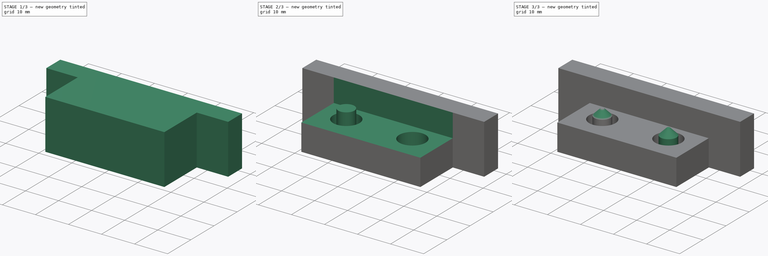
[diagram: build sequence overview — one tinted view per stage of 3, left to right]
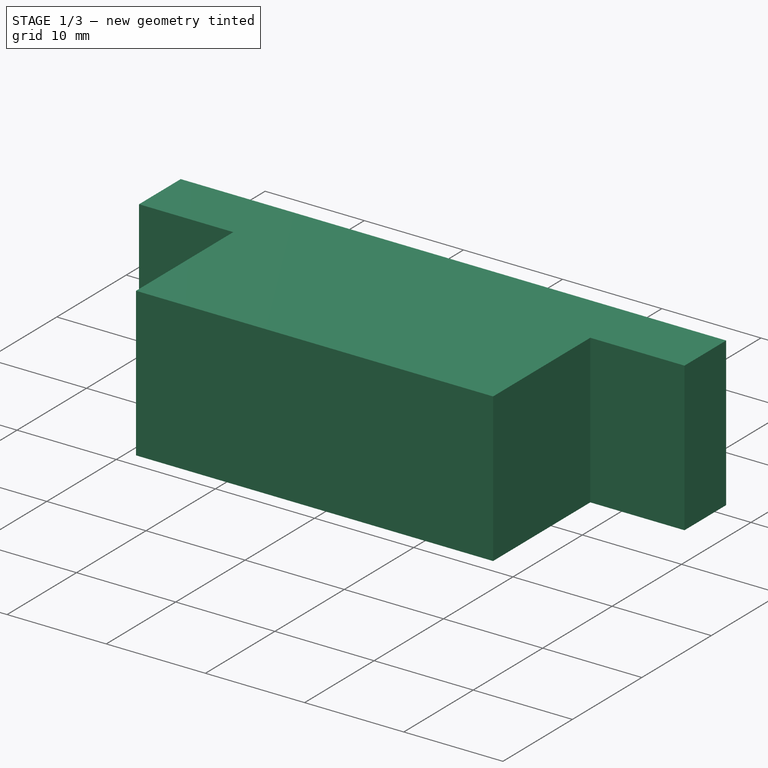
[diagram: stage 1 of 3 — iso view after this stage's code; geometry added in this stage tinted green]
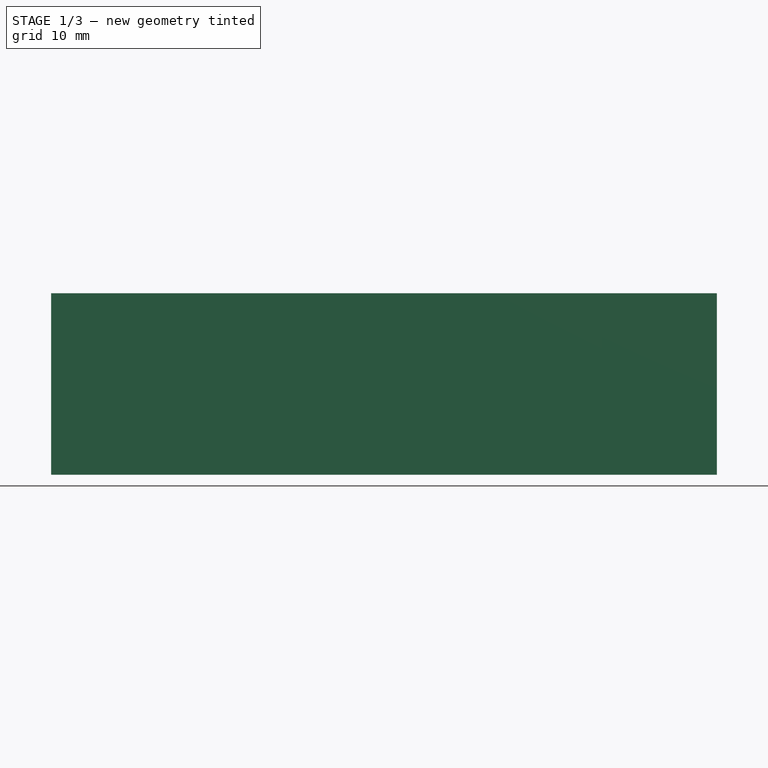
[diagram: stage 1 of 3 — front view after this stage's code; geometry added in this stage tinted green]
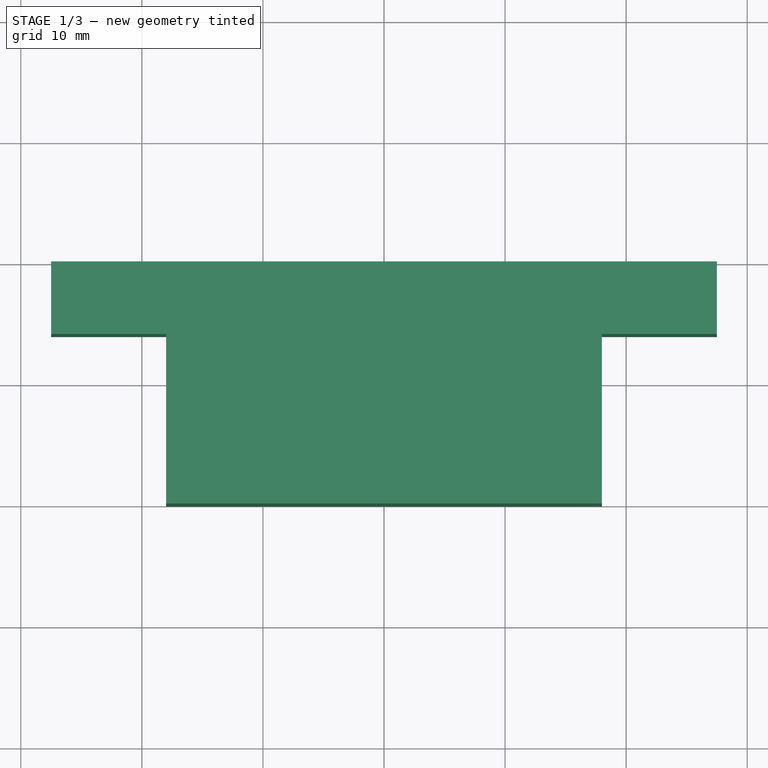
[diagram: stage 1 of 3 — top view after this stage's code; geometry added in this stage tinted green]
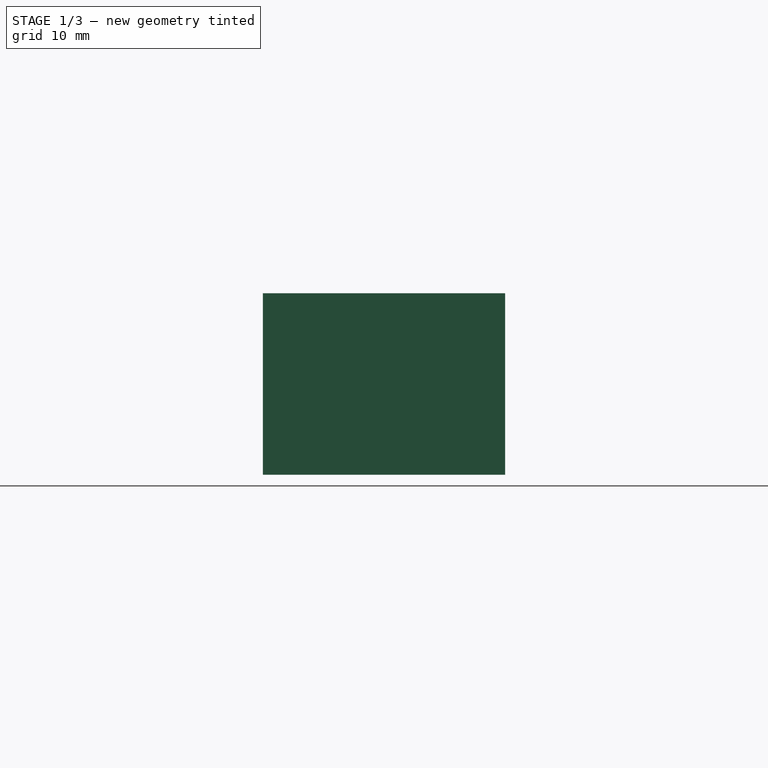
[diagram: stage 1 of 3 — right view after this stage's code; geometry added in this stage tinted green]
FCSTD DOCUMENT  (FreeCAD 0.21R33668 +7 (Git))
Label: socket-set-bottom-stopper
License: All rights reserved
LicenseURL: http://en.wikipedia.org/wiki/All_rights_reserved
objects: Sketcher::SketchObject×5, PartDesign::Pocket×3, PartDesign::Pad×1, PartDesign::Plane×1, PartDesign::Revolution×1, PartDesign::Chamfer×1, PartDesign::Mirrored×1, PartDesign::Body×1
note: 20 computed .brp shape members not serialized (recipe doc carries the construction recipe); baked Part::Feature solids carry a one-line shape summary decoded from their .brp

FEATURE [Sketcher::SketchObject] Sketch
  FullyConstrained = true
  MapMode = 5
  Support = -> [XY_Plane]
  sketch-geometry (4):
    g0: LineSegment StartX=-27.5 StartY=10 StartZ=0 EndX=27.5 EndY=10 EndZ=0
    g1: LineSegment StartX=27.5 StartY=10 StartZ=0 EndX=27.5 EndY=-10 EndZ=0
    g2: LineSegment StartX=27.5 StartY=-10 StartZ=0 EndX=-27.5 EndY=-10 EndZ=0
    g3: LineSegment StartX=-27.5 StartY=-10 StartZ=0 EndX=-27.5 EndY=10 EndZ=0
  constraints (10):
    c: Coincident(g0,g1)
    c: Coincident(g1,g2)
    c: Coincident(g2,g3)
    c: Coincident(g3,g0)
    c: Horizontal(g2)
    c: Vertical(g1)
    c: Symmetric(g0,g0,g-2)
    c: Symmetric(g2,g0,g-1)
    c: Distance(g3) = 20
    c: Distance(g2) = 55
FEATURE [PartDesign::Pad] Pad
  Direction = (0,0,1)
  Length = 15
  Length2 = 10
  Profile = -> Sketch
  ReferenceAxis = -> Sketch [N_Axis]
  Type = 0
FEATURE [Sketcher::SketchObject] Sketch001
  ExternalGeometry = -> [Pad]
  FullyConstrained = true
  MapMode = 5
  Placement = pos=(0,0,15) rot=(0,0,1;0rad)
  Support = -> [Pad]
  sketch-geometry (14):
    g0: LineSegment StartX=-27.5 StartY=4 StartZ=0 EndX=27.5 EndY=4 EndZ=0
    g1: LineSegment StartX=27.5 StartY=4 StartZ=0 EndX=27.5 EndY=-10 EndZ=0
    g2: LineSegment StartX=-27.5 StartY=4 StartZ=0 EndX=-27.5 EndY=-10 EndZ=0
    g3: LineSegment StartX=-27.5 StartY=-10 StartZ=0 EndX=27.5 EndY=-10 EndZ=0
    g4: Circle CenterX=-10 CenterY=-2 CenterZ=0 NormalX=0 NormalY=0 NormalZ=1 AngleXU=0 Radius=4.125
    g5: Circle CenterX=10 CenterY=-2 CenterZ=0 NormalX=0 NormalY=0 NormalZ=1 AngleXU=0 Radius=4.125
    g6: LineSegment StartX=-10 StartY=-2 StartZ=0 EndX=-10 EndY=4 EndZ=0
    g7: LineSegment StartX=-18 StartY=4 StartZ=0 EndX=-18 EndY=-10 EndZ=0
    g8: LineSegment StartX=18 StartY=4 StartZ=0 EndX=18 EndY=-10 EndZ=0
    g9: LineSegment StartX=-18 StartY=4 StartZ=0 EndX=18 EndY=4 EndZ=0
    g10: LineSegment StartX=-18 StartY=4 StartZ=0 EndX=-27.5 EndY=4 EndZ=0
    g11: LineSegment StartX=-18 StartY=-10 StartZ=0 EndX=-27.5 EndY=-10 EndZ=0
    g12: LineSegment StartX=18 StartY=4 StartZ=0 EndX=27.5 EndY=4 EndZ=0
    g13: LineSegment StartX=18 StartY=-10 StartZ=0 EndX=27.5 EndY=-10 EndZ=0
  constraints (35):
    c: PointOnObject(g0,g-3)
    c: PointOnObject(g0,g-4)
    c: Horizontal(g0)
    c: Coincident(g1,g0)
    c: Coincident(g1,g-6)
    c: Coincident(g2,g0)
    c: Coincident(g2,g-6)
    c: Coincident(g3,g2)
    c: Coincident(g3,g1)
    c: Distance(g2) = 14
    c: Symmetric(g5,g4,g-2)
    c: Equal(g4,g5)
    c: Diameter(g4) = 8.25
    c: Coincident(g6,g4)
    c: PointOnObject(g6,g0)
    c: Vertical(g6)
    c: Distance(g6) = 6
    c: DistanceX(g4,g5) = 20
    c: PointOnObject(g7,g0)
    c: PointOnObject(g7,g3)
    c: Vertical(g7)
    c: PointOnObject(g8,g3)
    c: Vertical(g8)
    c: Coincident(g9,g7)
    c: Coincident(g9,g8)
    c: Distance(g9) = 36
    c: Coincident(g10,g7)
    c: Coincident(g10,g2)
    c: Coincident(g11,g7)
    c: Coincident(g11,g2)
    c: Symmetric(g7,g8,g-2)
    c: Coincident(g12,g8)
    c: Coincident(g12,g1)
    c: Coincident(g13,g8)
    c: Coincident(g13,g1)
FEATURE [PartDesign::Pocket] Pocket
  BaseFeature = -> Pad
  Direction = (0,0,-1)
  Length = 5
  Length2 = 5
  Profile = -> Sketch001
  ReferenceAxis = -> Sketch001 [N_Axis]
  Type = 1
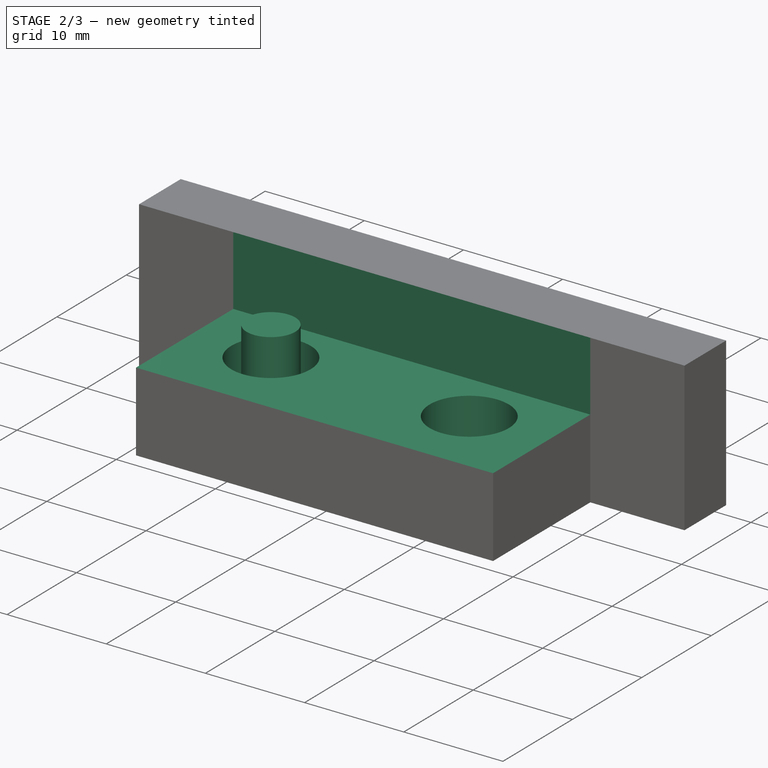
[diagram: stage 2 of 3 — iso view after this stage's code; geometry added in this stage tinted green]
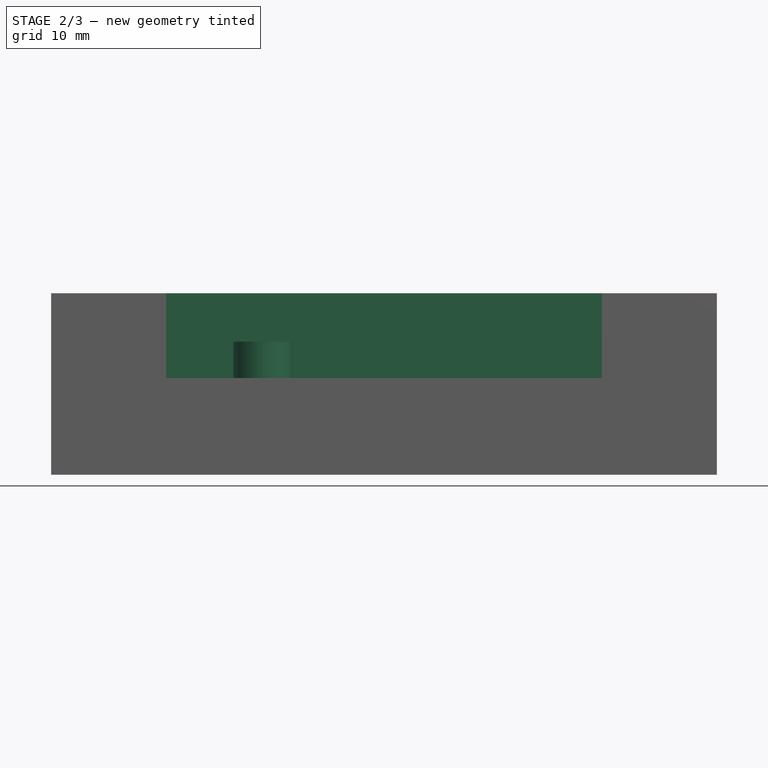
[diagram: stage 2 of 3 — front view after this stage's code; geometry added in this stage tinted green]
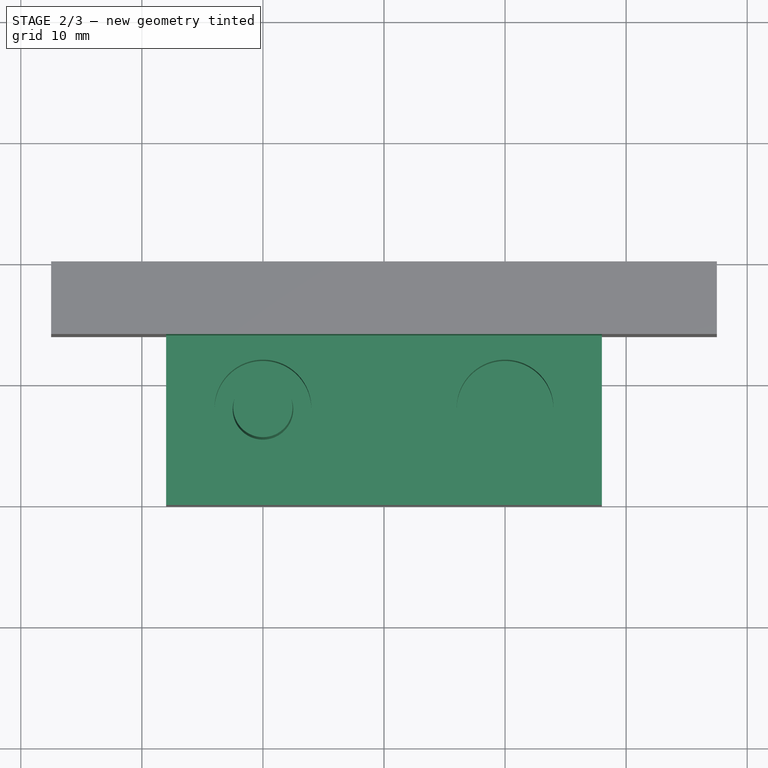
[diagram: stage 2 of 3 — top view after this stage's code; geometry added in this stage tinted green]
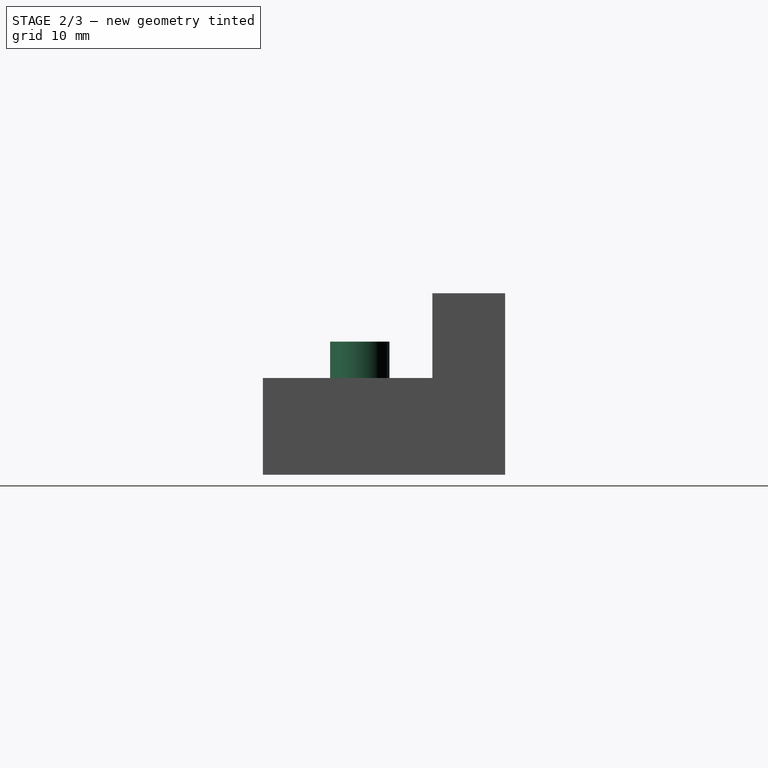
[diagram: stage 2 of 3 — right view after this stage's code; geometry added in this stage tinted green]
FEATURE [Sketcher::SketchObject] Sketch002
  ExternalGeometry = -> [Pocket]
  FullyConstrained = true
  MapMode = 5
  Placement = pos=(0,0,15) rot=(0,0,1;0rad)
  Support = -> [Pocket]
  sketch-geometry (2):
    g0: Circle CenterX=-10 CenterY=-2 CenterZ=0 NormalX=0 NormalY=0 NormalZ=1 AngleXU=0 Radius=4
    g1: Circle CenterX=10 CenterY=-2 CenterZ=0 NormalX=0 NormalY=0 NormalZ=1 AngleXU=0 Radius=4
  constraints (5):
    c: Equal(g1,g0)
    c: Symmetric(g0,g1,g-2)
    c: DistanceY(g0,g-3) = 6
    c: Diameter(g0) = 8
    c: Distance(g0,g1) = 20
FEATURE [PartDesign::Pocket] Pocket001
  BaseFeature = -> Pocket
  Direction = (0,0,-1)
  Length = 13
  Length2 = 5
  Profile = -> Sketch002
  ReferenceAxis = -> Sketch002 [N_Axis]
  Type = 0
  expr: Length = Pad.Length - 2 mm
FEATURE [PartDesign::Plane] DatumPlane
  Length = 65.4881
  MapMode = 7
  Placement = pos=(-6,-2,15) rot=(1,0,0;1.5708rad)
  ResizeMode = 0
  Support = -> [Pocket001]
  Width = 60.4881
FEATURE [Sketcher::SketchObject] Sketch004
  ExternalGeometry = -> [Pocket001]
  FullyConstrained = true
  MapMode = 5
  Placement = pos=(0,0,15) rot=(0,0,1;0rad)
  Support = -> [Pocket001]
  sketch-geometry (4):
    g0: LineSegment StartX=-18 StartY=4 StartZ=0 EndX=18 EndY=4 EndZ=0
    g1: LineSegment StartX=18 StartY=4 StartZ=0 EndX=18 EndY=-10 EndZ=0
    g2: LineSegment StartX=18 StartY=-10 StartZ=0 EndX=-18 EndY=-10 EndZ=0
    g3: LineSegment StartX=-18 StartY=-10 StartZ=0 EndX=-18 EndY=4 EndZ=0
  constraints (10):
    c: Coincident(g0,g1)
    c: Coincident(g1,g2)
    c: Coincident(g2,g3)
    c: Coincident(g3,g0)
    c: Horizontal(g0)
    c: Horizontal(g2)
    c: Vertical(g1)
    c: Vertical(g3)
    c: Coincident(g0,g-3)
    c: Coincident(g1,g-4)
FEATURE [PartDesign::Pocket] Pocket002
  BaseFeature = -> Pocket001
  Direction = (0,0,-1)
  Length = 7
  Length2 = 5
  Profile = -> Sketch004
  ReferenceAxis = -> Sketch004 [N_Axis]
  Type = 0
FEATURE [Sketcher::SketchObject] Sketch005
  ExternalGeometry = -> [Pocket002]
  FullyConstrained = true
  MapMode = 5
  Placement = pos=(-6,-2,15) rot=(1,0,0;1.5708rad)
  Support = -> [DatumPlane]
  sketch-geometry (5):
    g0: LineSegment StartX=-4 StartY=-4 StartZ=0 EndX=-1.55 EndY=-4 EndZ=0
    g1: LineSegment StartX=-1.55 StartY=-4 StartZ=0 EndX=-1.55 EndY=-8 EndZ=0
    g2: LineSegment StartX=-1.55 StartY=-8 StartZ=0 EndX=-1.5 EndY=-13 EndZ=0
    g3: LineSegment StartX=-1.5 StartY=-13 StartZ=0 EndX=-4 EndY=-13 EndZ=0
    g4: LineSegment StartX=-4 StartY=-4 StartZ=0 EndX=-4 EndY=-13 EndZ=0
  constraints (14):
    c: Coincident(g1,g0)
    c: Vertical(g1)
    c: Coincident(g2,g1)
    c: Coincident(g3,g2)
    c: Distance(g3) = 2.5
    c: Coincident(g4,g0)
    c: Coincident(g4,g3)
    c: Vertical(g4)
    c: Distance(g4) = 9
    c: Horizontal(g0)
    c: Distance(g0) = 2.45
    c: Symmetric(g-4,g-4,g3)
    c: DistanceY(g2,g1) = 5
    c: PointOnObject(g2,g-4)
FEATURE [PartDesign::Revolution] Revolution
  Angle = 360
  Axis = (0,-2e-16,-1)
  Base = (-10,-2,11)
  BaseFeature = -> Pocket002
  Profile = -> Sketch005
  ReferenceAxis = -> Sketch005 [Edge5]
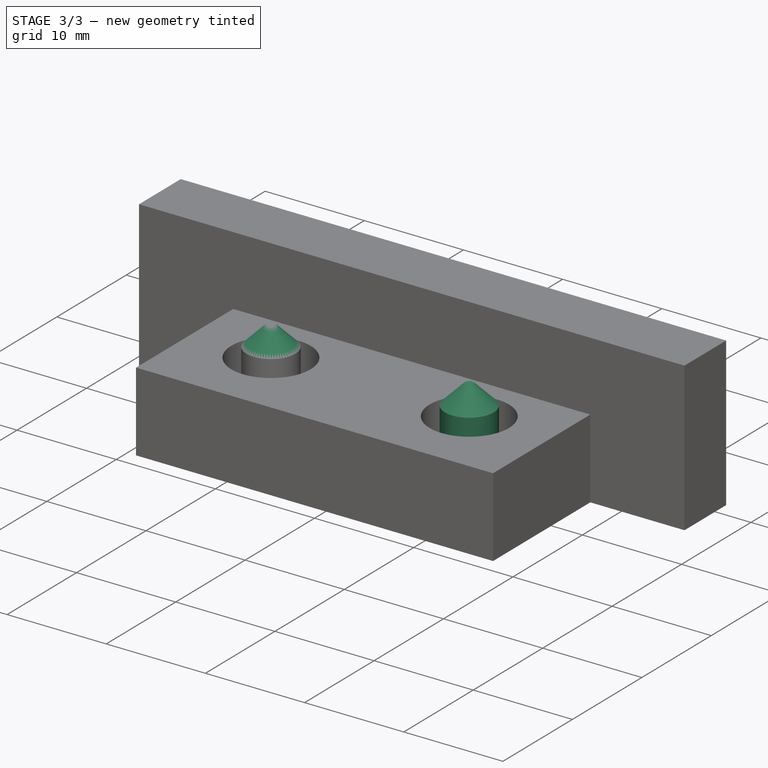
[diagram: stage 3 of 3 — iso view after this stage's code; geometry added in this stage tinted green]
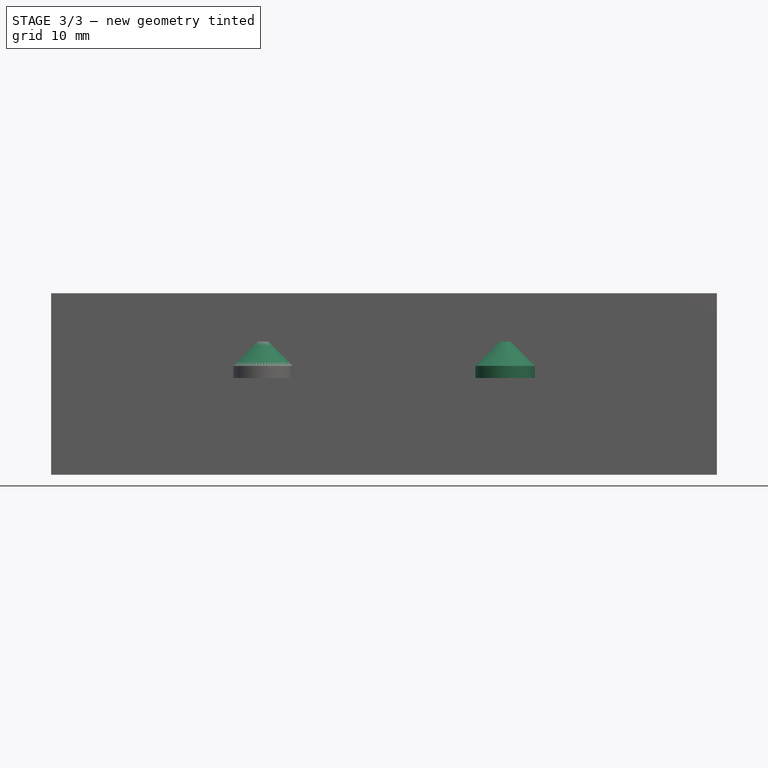
[diagram: stage 3 of 3 — front view after this stage's code; geometry added in this stage tinted green]
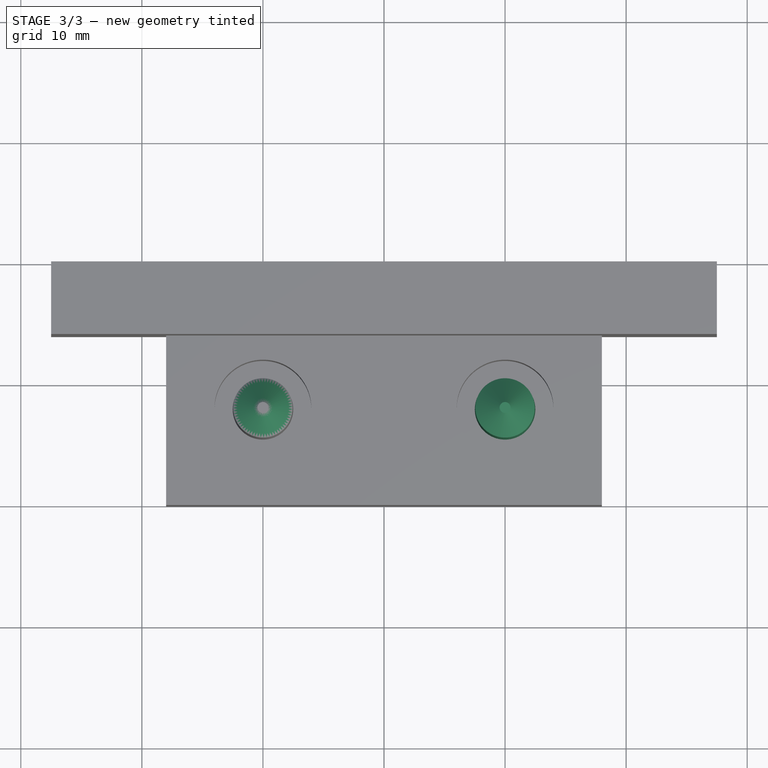
[diagram: stage 3 of 3 — top view after this stage's code; geometry added in this stage tinted green]
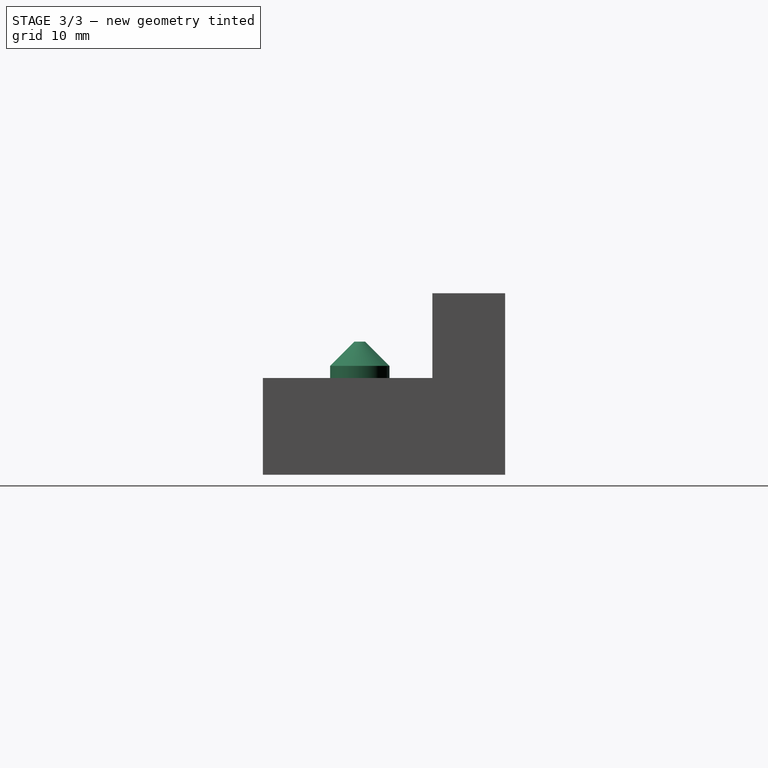
[diagram: stage 3 of 3 — right view after this stage's code; geometry added in this stage tinted green]
FEATURE [PartDesign::Chamfer] Chamfer
  Angle = 45
  Base = -> Revolution [Face19]
  BaseFeature = -> Revolution
  ChamferType = 0
  FlipDirection = false
  Size = 2
  Size2 = 1
  SupportTransform = false
  UseAllEdges = false
FEATURE [PartDesign::Mirrored] Mirrored
  BaseFeature = -> Chamfer
  MirrorPlane = -> YZ_Plane
  Originals = -> [Revolution,Chamfer]
FEATURE [PartDesign::Body] Body
  Group = -> [Sketch,Pad,Sketch001,Pocket,Sketch002,Pocket001,DatumPlane,Sketch004,Pocket002,Sketch005,Revolution,Chamfer,Mirrored]
  Origin = -> Origin
  Tip = -> Mirrored
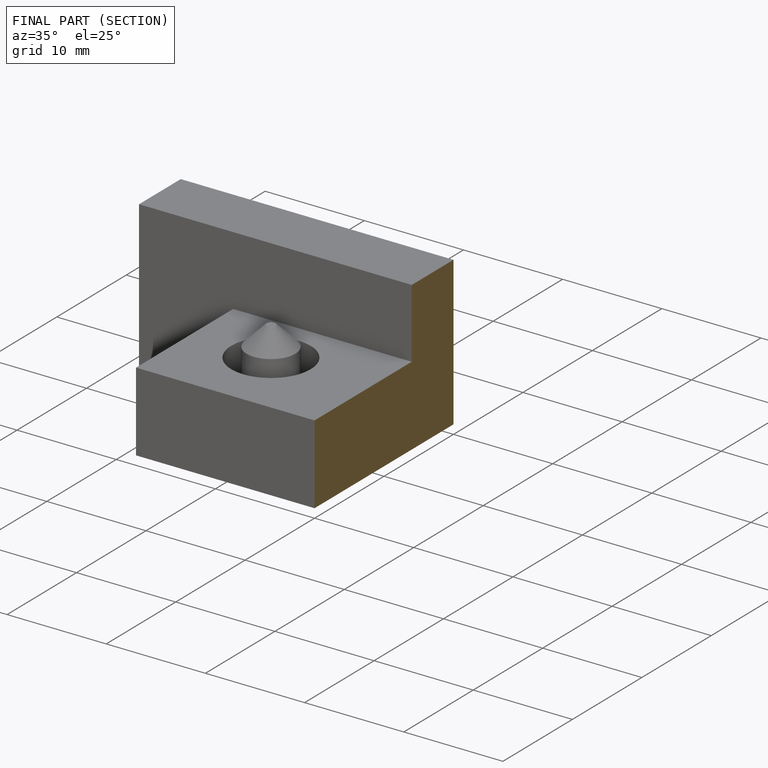
[diagram: finished part — half-section view (interior)]
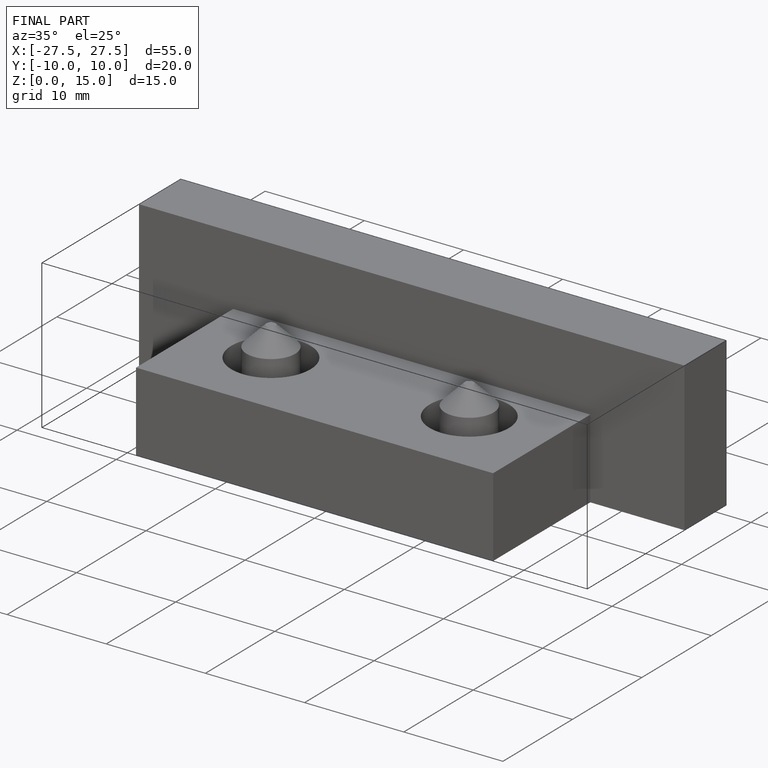
[diagram: finished part — iso view with bounding-box wireframe]
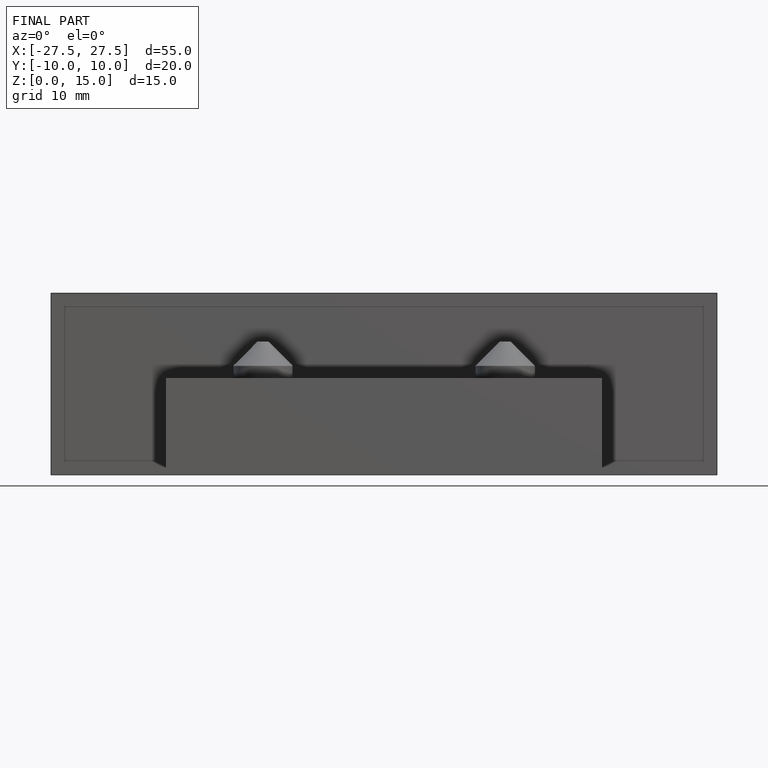
[diagram: finished part — front view with bounding-box wireframe]
